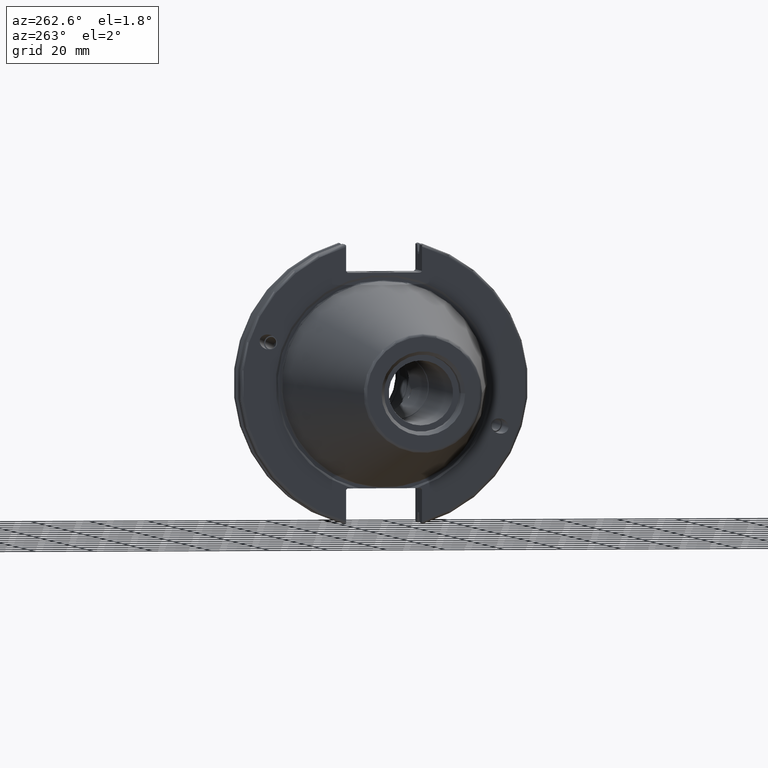
[diagram: clean part render]
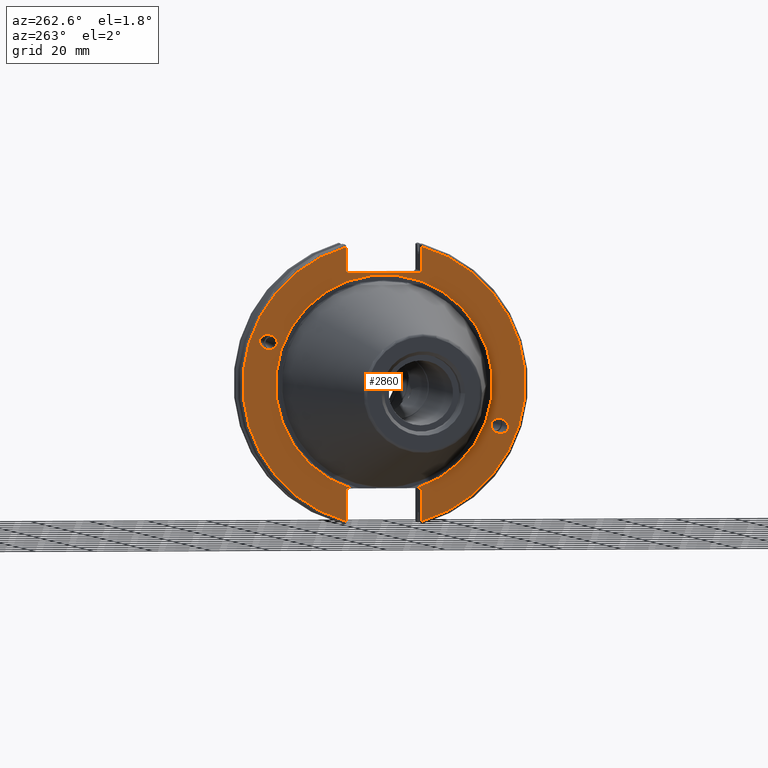
[diagram: same view with one face highlighted and labeled with its STEP entity id]
A machine part, auxiliary view. The second image highlights one B-rep face of the part: STEP entity #2860.
In plain terms, the highlighted planar face has unit normal (-1, 0, 0).
Its self-contained STEP definition (entity closure, byte-faithful):
#76=ELLIPSE('',#3104,3.05193647190365,2.50000000000001);
#77=ELLIPSE('',#3139,3.05193647190365,2.50000000000001);
#255=LINE('',#4900,#404);
#258=LINE('',#4950,#407);
#266=LINE('',#4986,#415);
#270=LINE('',#5054,#419);
#271=LINE('',#5056,#420);
#272=LINE('',#5058,#421);
#273=LINE('',#5059,#422);
#274=LINE('',#5061,#423);
#275=LINE('',#5063,#424);
#276=LINE('',#5067,#425);
#277=LINE('',#5068,#426);
#404=VECTOR('',#3650,10.);
#407=VECTOR('',#3659,10.);
#415=VECTOR('',#3669,10.);
#419=VECTOR('',#3695,10.);
#420=VECTOR('',#3696,10.);
#421=VECTOR('',#3697,10.);
#422=VECTOR('',#3698,10.);
#423=VECTOR('',#3699,10.);
#424=VECTOR('',#3700,10.);
#425=VECTOR('',#3703,10.);
#426=VECTOR('',#3704,10.);
#554=FACE_BOUND('',#864,.T.);
#555=FACE_BOUND('',#865,.T.);
#584=PLANE('',#3162);
#685=FACE_OUTER_BOUND('',#863,.T.);
#863=EDGE_LOOP('',(#2209,#2210,#2211,#2212,#2213,#2214,#2215,#2216,#2217,
#2218,#2219,#2220,#2221,#2222));
#864=EDGE_LOOP('',(#2223));
#865=EDGE_LOOP('',(#2224));
#1050=CIRCLE('',#3154,48.2125);
#1053=CIRCLE('',#3161,48.2125);
#1054=CIRCLE('',#3163,37.);
#1213=VERTEX_POINT('',#4579);
#1252=VERTEX_POINT('',#4843);
#1261=VERTEX_POINT('',#4897);
#1262=VERTEX_POINT('',#4899);
#1268=VERTEX_POINT('',#4947);
#1269=VERTEX_POINT('',#4949);
#1277=VERTEX_POINT('',#4978);
#1278=VERTEX_POINT('',#4985);
#1286=VERTEX_POINT('',#5044);
#1287=VERTEX_POINT('',#5053);
#1288=VERTEX_POINT('',#5055);
#1289=VERTEX_POINT('',#5057);
#1290=VERTEX_POINT('',#5060);
#1291=VERTEX_POINT('',#5062);
#1292=VERTEX_POINT('',#5064);
#1293=VERTEX_POINT('',#5066);
#1530=EDGE_CURVE('',#1213,#1213,#76,.T.);
#1583=EDGE_CURVE('',#1252,#1252,#77,.T.);
#1597=EDGE_CURVE('',#1262,#1261,#255,.T.);
#1607=EDGE_CURVE('',#1269,#1268,#258,.T.);
#1619=EDGE_CURVE('',#1278,#1277,#266,.T.);
#1624=EDGE_CURVE('',#1269,#1277,#1050,.T.);
#1633=EDGE_CURVE('',#1262,#1286,#1053,.T.);
#1635=EDGE_CURVE('',#1287,#1268,#270,.T.);
#1636=EDGE_CURVE('',#1287,#1288,#271,.T.);
#1637=EDGE_CURVE('',#1289,#1288,#272,.T.);
#1638=EDGE_CURVE('',#1289,#1286,#273,.T.);
#1639=EDGE_CURVE('',#1290,#1261,#274,.T.);
#1640=EDGE_CURVE('',#1290,#1291,#275,.T.);
#1641=EDGE_CURVE('',#1291,#1292,#1054,.T.);
#1642=EDGE_CURVE('',#1292,#1293,#276,.T.);
#1643=EDGE_CURVE('',#1278,#1293,#277,.T.);
#2209=ORIENTED_EDGE('',*,*,#1624,.F.);
#2210=ORIENTED_EDGE('',*,*,#1607,.T.);
#2211=ORIENTED_EDGE('',*,*,#1635,.F.);
#2212=ORIENTED_EDGE('',*,*,#1636,.T.);
#2213=ORIENTED_EDGE('',*,*,#1637,.F.);
#2214=ORIENTED_EDGE('',*,*,#1638,.T.);
#2215=ORIENTED_EDGE('',*,*,#1633,.F.);
#2216=ORIENTED_EDGE('',*,*,#1597,.T.);
#2217=ORIENTED_EDGE('',*,*,#1639,.F.);
#2218=ORIENTED_EDGE('',*,*,#1640,.T.);
#2219=ORIENTED_EDGE('',*,*,#1641,.T.);
#2220=ORIENTED_EDGE('',*,*,#1642,.T.);
#2221=ORIENTED_EDGE('',*,*,#1643,.F.);
#2222=ORIENTED_EDGE('',*,*,#1619,.T.);
#2223=ORIENTED_EDGE('',*,*,#1530,.T.);
#2224=ORIENTED_EDGE('',*,*,#1583,.T.);
#2860=ADVANCED_FACE('',(#685,#554,#555),#584,.T.);
#3104=AXIS2_PLACEMENT_3D('',#4581,#3541,#3542);
#3139=AXIS2_PLACEMENT_3D('',#4845,#3627,#3628);
#3154=AXIS2_PLACEMENT_3D('',#5008,#3675,#3676);
#3161=AXIS2_PLACEMENT_3D('',#5045,#3691,#3692);
#3162=AXIS2_PLACEMENT_3D('',#5052,#3693,#3694);
#3163=AXIS2_PLACEMENT_3D('',#5065,#3701,#3702);
#3541=DIRECTION('center_axis',(1.,0.,0.));
#3542=DIRECTION('ref_axis',(0.,-0.939692620785909,-0.342020143325667));
#3627=DIRECTION('center_axis',(1.,0.,0.));
#3628=DIRECTION('ref_axis',(0.,0.939692620785909,0.342020143325667));
#3650=DIRECTION('',(0.,0.,1.));
#3659=DIRECTION('',(0.,0.,-1.));
#3669=DIRECTION('',(0.,0.,-1.));
#3675=DIRECTION('center_axis',(1.,0.,0.));
#3676=DIRECTION('ref_axis',(0.,-1.,1.60812264967664E-16));
#3691=DIRECTION('center_axis',(1.,0.,0.));
#3692=DIRECTION('ref_axis',(0.,1.,-6.12323399573677E-17));
#3693=DIRECTION('center_axis',(-1.,0.,0.));
#3694=DIRECTION('ref_axis',(0.,0.,1.));
#3695=DIRECTION('',(0.,-0.707106781186549,0.707106781186546));
#3696=DIRECTION('',(0.,1.,0.));
#3697=DIRECTION('',(0.,-0.707106781186549,-0.707106781186546));
#3698=DIRECTION('',(0.,0.,1.));
#3699=DIRECTION('',(0.,0.707106781186548,-0.707106781186548));
#3700=DIRECTION('',(0.,-1.,0.));
#3701=DIRECTION('center_axis',(1.,0.,0.));
#3702=DIRECTION('ref_axis',(0.,0.,-1.));
#3703=DIRECTION('',(0.,-1.,0.));
#3704=DIRECTION('',(0.,0.707106781186549,0.707106781186546));
#4579=CARTESIAN_POINT('',(1.5,-36.5992078912529,-13.3210222701368));
#4581=CARTESIAN_POINT('Origin',(1.5,-39.4670900730082,-14.3648460196781));
#4843=CARTESIAN_POINT('',(1.5,36.5992078912529,13.3210222701368));
#4845=CARTESIAN_POINT('Origin',(1.5,39.4670900730082,14.3648460196781));
#4897=CARTESIAN_POINT('',(1.5,12.95,-35.806));
#4899=CARTESIAN_POINT('',(1.5,12.95,-46.4407434937254));
#4900=CARTESIAN_POINT('',(1.5,12.95,-17.653));
#4947=CARTESIAN_POINT('',(1.5,-12.95,38.219));
#4949=CARTESIAN_POINT('',(1.5,-12.95,46.4407434937254));
#4950=CARTESIAN_POINT('',(1.5,-12.95,18.8595));
#4978=CARTESIAN_POINT('',(1.5,-12.95,-46.4407434937254));
#4985=CARTESIAN_POINT('',(1.5,-12.95,-35.806));
#4986=CARTESIAN_POINT('',(1.5,-12.95,-17.653));
#5008=CARTESIAN_POINT('Origin',(1.5,0.,0.));
#5044=CARTESIAN_POINT('',(1.5,12.95,46.4407434937254));
#5045=CARTESIAN_POINT('Origin',(1.5,0.,0.));
#5052=CARTESIAN_POINT('Origin',(1.5,49.2125,0.));
#5053=CARTESIAN_POINT('',(1.5,-12.45,37.719));
#5054=CARTESIAN_POINT('',(1.5,12.2703750000001,12.998625));
#5055=CARTESIAN_POINT('',(1.5,12.45,37.719));
#5056=CARTESIAN_POINT('',(1.5,24.60625,37.719));
#5057=CARTESIAN_POINT('',(1.5,12.95,38.219));
#5058=CARTESIAN_POINT('',(1.5,12.335875,37.604875));
#5059=CARTESIAN_POINT('',(1.5,12.95,18.8595));
#5060=CARTESIAN_POINT('',(1.5,12.45,-35.306));
#5061=CARTESIAN_POINT('',(1.5,12.939125,-35.795125));
#5062=CARTESIAN_POINT('',(1.49999999999999,11.0673557817575,-35.306));
#5063=CARTESIAN_POINT('',(1.5,24.60625,-35.306));
#5064=CARTESIAN_POINT('',(1.5,-11.0673557817575,-35.306));
#5065=CARTESIAN_POINT('Origin',(1.5,0.,0.));
#5066=CARTESIAN_POINT('',(1.5,-12.45,-35.306));
#5067=CARTESIAN_POINT('',(1.5,24.60625,-35.306));
#5068=CARTESIAN_POINT('',(1.5,11.6671250000001,-11.188875));